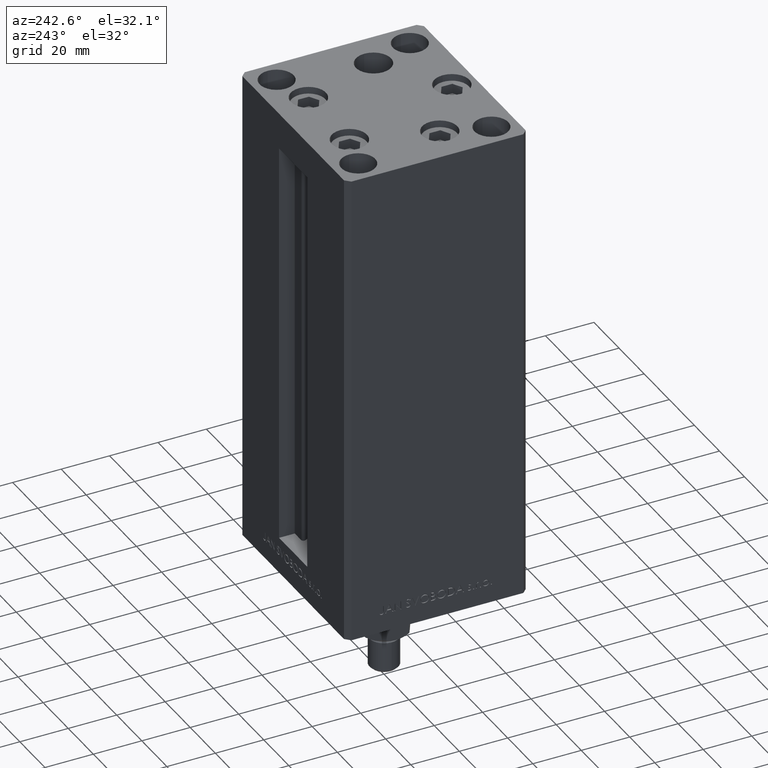
[diagram: clean part render]
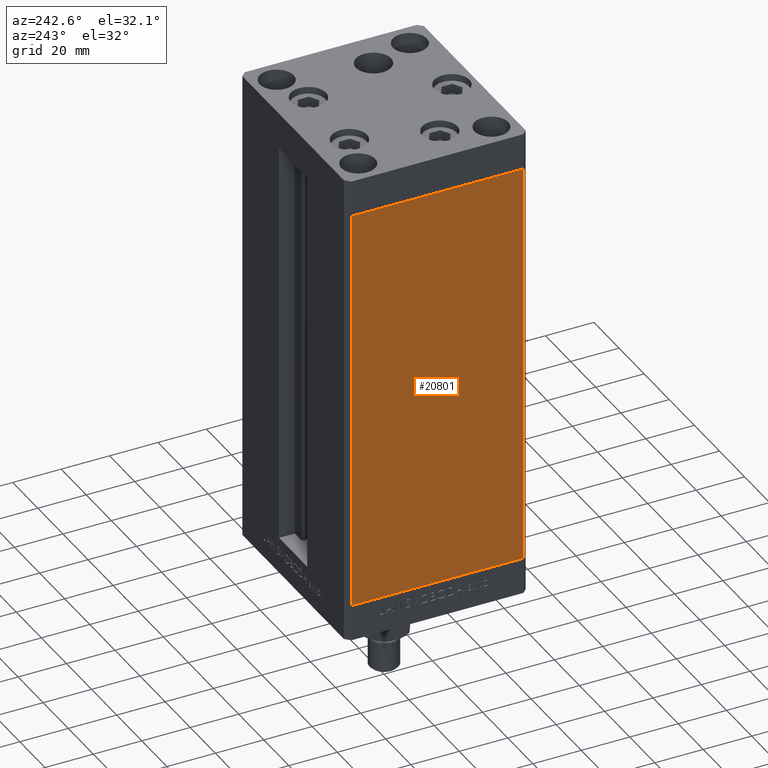
[diagram: same view with one face highlighted and labeled with its STEP entity id]
A machine part, auxiliary view. The second image highlights one B-rep face of the part: STEP entity #20801.
In plain terms, the highlighted planar face has unit normal (1, 0, 0).
Its self-contained STEP definition (entity closure, byte-faithful):
#4840 = DIRECTION ( 'NONE',  ( 1.000000000000000000, 2.931927001650941360E-16, -0.000000000000000000 ) ) ;
#5479 = LINE ( 'NONE', #48395, #27420 ) ;
#5613 = ORIENTED_EDGE ( 'NONE', *, *, #39048, .F. ) ;
#7351 = EDGE_CURVE ( 'NONE', #21020, #34479, #14884, .T. ) ;
#8677 = FACE_OUTER_BOUND ( 'NONE', #23522, .T. ) ;
#9144 = CARTESIAN_POINT ( 'NONE',  ( -42.49999999999998579, -35.50000000000000711, 168.5000000000000000 ) ) ;
#10513 = DIRECTION ( 'NONE',  ( -0.000000000000000000, -0.000000000000000000, -1.000000000000000000 ) ) ;
#14638 = DIRECTION ( 'NONE',  ( -0.000000000000000000, -0.000000000000000000, -1.000000000000000000 ) ) ;
#14884 = LINE ( 'NONE', #38367, #24618 ) ;
#14920 = LINE ( 'NONE', #45582, #43803 ) ;
#16073 = CARTESIAN_POINT ( 'NONE',  ( -42.50000000000000711, 35.50000000000001421, 0.000000000000000000 ) ) ;
#17923 = CARTESIAN_POINT ( 'NONE',  ( -42.49999999999998579, -35.50000000000000711, 168.5000000000000000 ) ) ;
#18079 = ORIENTED_EDGE ( 'NONE', *, *, #43789, .T. ) ;
#20429 = DIRECTION ( 'NONE',  ( -2.931927001650941360E-16, 1.000000000000000000, 0.000000000000000000 ) ) ;
#20801 = ADVANCED_FACE ( 'NONE', ( #8677 ), #24261, .F. ) ;
#21020 = VERTEX_POINT ( 'NONE', #35714 ) ;
#21717 = ORIENTED_EDGE ( 'NONE', *, *, #7351, .T. ) ;
#22122 = CARTESIAN_POINT ( 'NONE',  ( -42.49999999999998579, -35.50000000000000711, 0.000000000000000000 ) ) ;
#23103 = VERTEX_POINT ( 'NONE', #22122 ) ;
#23522 = EDGE_LOOP ( 'NONE', ( #18079, #32456, #5613, #21717 ) ) ;
#24136 = VECTOR ( 'NONE', #10513, 1000.000000000000000 ) ;
#24261 = PLANE ( 'NONE',  #32315 ) ;
#24618 = VECTOR ( 'NONE', #14638, 1000.000000000000000 ) ;
#27420 = VECTOR ( 'NONE', #40475, 1000.000000000000000 ) ;
#30002 = DIRECTION ( 'NONE',  ( 2.931927001650941360E-16, -1.000000000000000000, 0.000000000000000000 ) ) ;
#32315 = AXIS2_PLACEMENT_3D ( 'NONE', #39831, #4840, #20429 ) ;
#32456 = ORIENTED_EDGE ( 'NONE', *, *, #38487, .F. ) ;
#34479 = VERTEX_POINT ( 'NONE', #16073 ) ;
#35714 = CARTESIAN_POINT ( 'NONE',  ( -42.50000000000000711, 35.50000000000001421, 168.5000000000000000 ) ) ;
#38367 = CARTESIAN_POINT ( 'NONE',  ( -42.50000000000000711, 35.50000000000001421, 168.5000000000000000 ) ) ;
#38487 = EDGE_CURVE ( 'NONE', #44079, #23103, #48835, .T. ) ;
#39048 = EDGE_CURVE ( 'NONE', #21020, #44079, #5479, .T. ) ;
#39831 = CARTESIAN_POINT ( 'NONE',  ( -42.50000000000000711, 35.50000000000001421, 168.5000000000000000 ) ) ;
#40475 = DIRECTION ( 'NONE',  ( 2.931927001650941360E-16, -1.000000000000000000, 0.000000000000000000 ) ) ;
#43789 = EDGE_CURVE ( 'NONE', #34479, #23103, #14920, .T. ) ;
#43803 = VECTOR ( 'NONE', #30002, 1000.000000000000000 ) ;
#44079 = VERTEX_POINT ( 'NONE', #9144 ) ;
#45582 = CARTESIAN_POINT ( 'NONE',  ( -42.50000000000000711, 35.50000000000001421, 0.000000000000000000 ) ) ;
#48395 = CARTESIAN_POINT ( 'NONE',  ( -42.50000000000000711, 35.50000000000001421, 168.5000000000000000 ) ) ;
#48835 = LINE ( 'NONE', #17923, #24136 ) ;